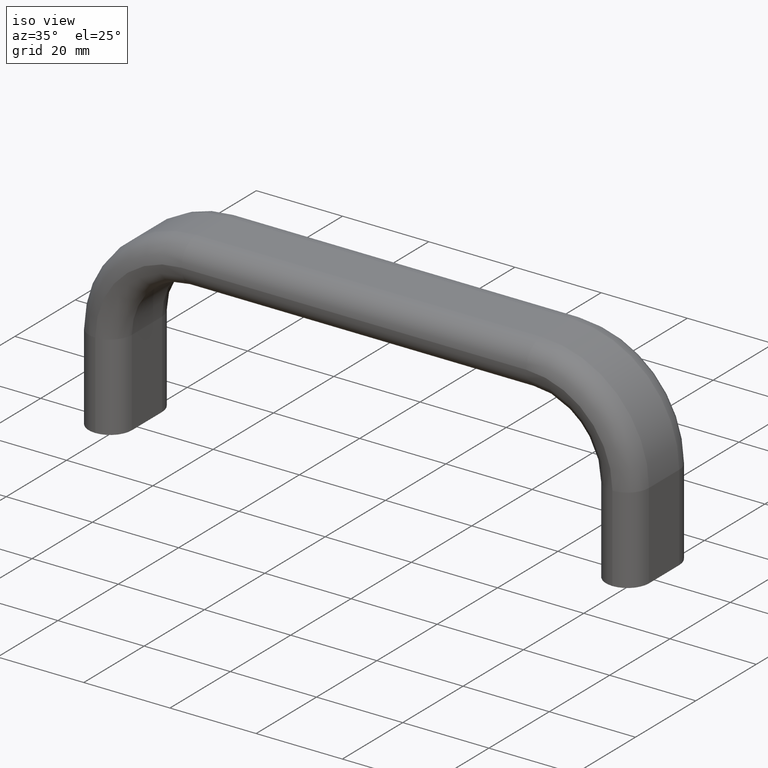
[diagram: clean part render]
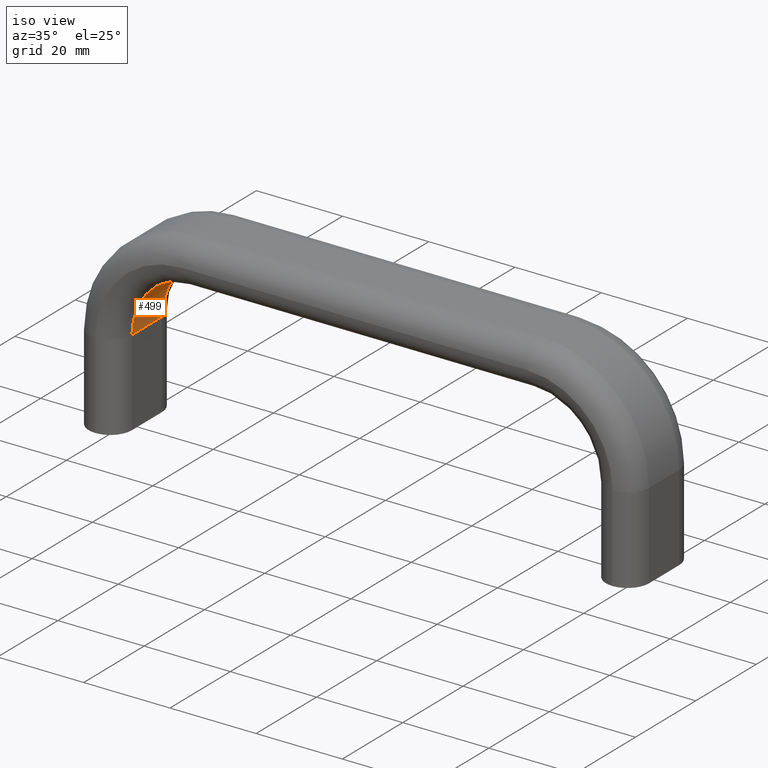
[diagram: same view with one face highlighted and labeled with its STEP entity id]
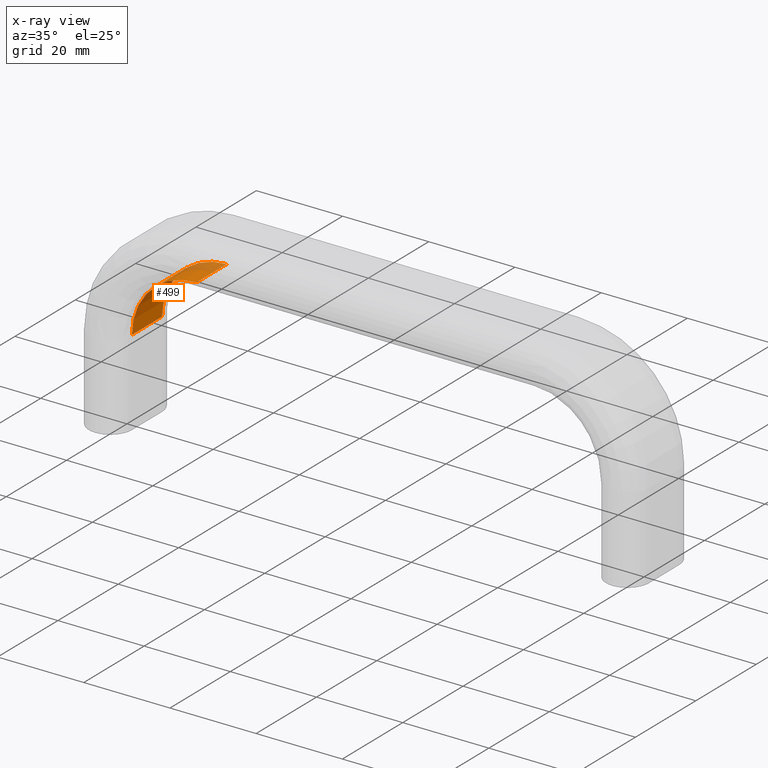
[diagram: x-ray of the same camera — body ghosted, the highlighted face saturated]
A machine part, iso view. The second image highlights one B-rep face of the part: STEP entity #499.
The next image is the same camera in x-ray: the body ghosted, the highlighted face saturated — about 17% of this face is hidden behind the body in this view.
In plain terms, the highlighted cylindrical surface (partial cylindrical patch) has radius 15 mm, axis along (0, 1, -0).
Its self-contained STEP definition (entity closure, byte-faithful):
#208=CARTESIAN_POINT('',(5.0,4.500000000000001,20.0));
#209=VERTEX_POINT('',#208);
#313=CARTESIAN_POINT('',(5.0,-5.499999999999999,20.0));
#314=VERTEX_POINT('',#313);
#445=CARTESIAN_POINT('',(20.0,4.500000000000002,35.0));
#446=VERTEX_POINT('',#445);
#447=CARTESIAN_POINT('',(20.0,-5.499999999999998,35.0));
#448=VERTEX_POINT('',#447);
#449=CARTESIAN_POINT('',(20.0,4.500000000000002,35.0));
#450=DIRECTION('',(0.0,-1.0,0.0));
#451=VECTOR('',#450,10.0);
#452=LINE('',#449,#451);
#453=EDGE_CURVE('',#446,#448,#452,.T.);
#471=CARTESIAN_POINT('',(20.0,9.500000000000002,20.0));
#472=DIRECTION('',(0.0,1.0,-6.123234E-017));
#473=DIRECTION('',(-1.0,7.498799E-033,1.224647E-016));
#474=AXIS2_PLACEMENT_3D('',#471,#472,#473);
#475=CYLINDRICAL_SURFACE('',#474,15.0);
#476=CARTESIAN_POINT('',(5.0,4.500000000000002,20.0));
#477=DIRECTION('',(0.0,-1.0,0.0));
#478=VECTOR('',#477,10.0);
#479=LINE('',#476,#478);
#480=EDGE_CURVE('',#209,#314,#479,.T.);
#481=ORIENTED_EDGE('',*,*,#480,.F.);
#482=CARTESIAN_POINT('',(20.0,4.500000000000001,20.0));
#483=DIRECTION('',(0.0,1.0,-6.123234E-017));
#484=DIRECTION('',(1.0,0.0,0.0));
#485=AXIS2_PLACEMENT_3D('',#482,#483,#484);
#486=CIRCLE('',#485,15.0);
#487=EDGE_CURVE('',#209,#446,#486,.T.);
#488=ORIENTED_EDGE('',*,*,#487,.T.);
#489=ORIENTED_EDGE('',*,*,#453,.T.);
#490=CARTESIAN_POINT('',(20.0,-5.499999999999999,20.0));
#491=DIRECTION('',(0.0,1.0,-6.123234E-017));
#492=DIRECTION('',(1.0,0.0,0.0));
#493=AXIS2_PLACEMENT_3D('',#490,#491,#492);
#494=CIRCLE('',#493,15.0);
#495=EDGE_CURVE('',#314,#448,#494,.T.);
#496=ORIENTED_EDGE('',*,*,#495,.F.);
#497=EDGE_LOOP('',(#481,#488,#489,#496));
#498=FACE_OUTER_BOUND('',#497,.T.);
#499=ADVANCED_FACE('',(#498),#475,.F.);